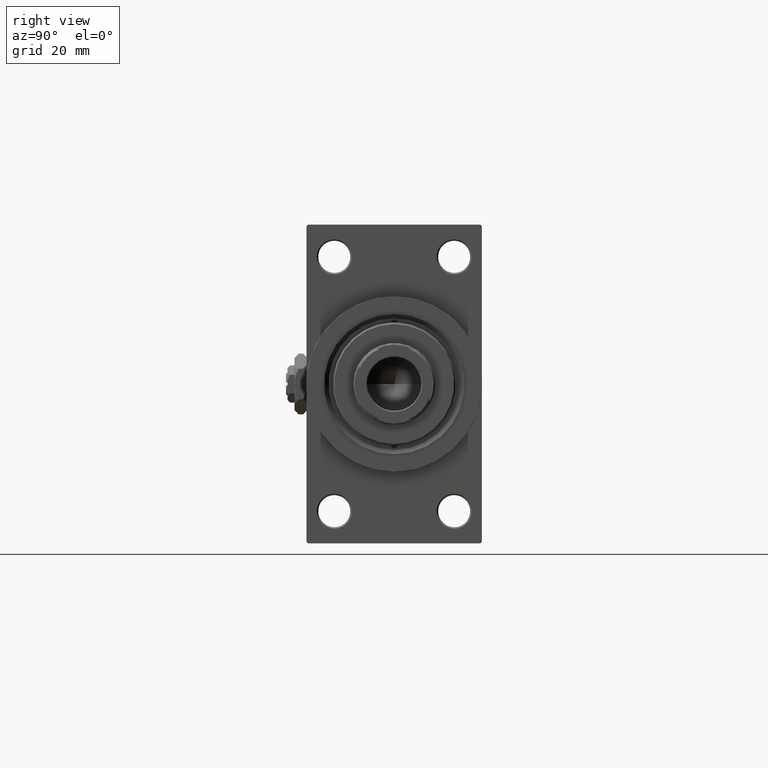
[diagram: clean part render]
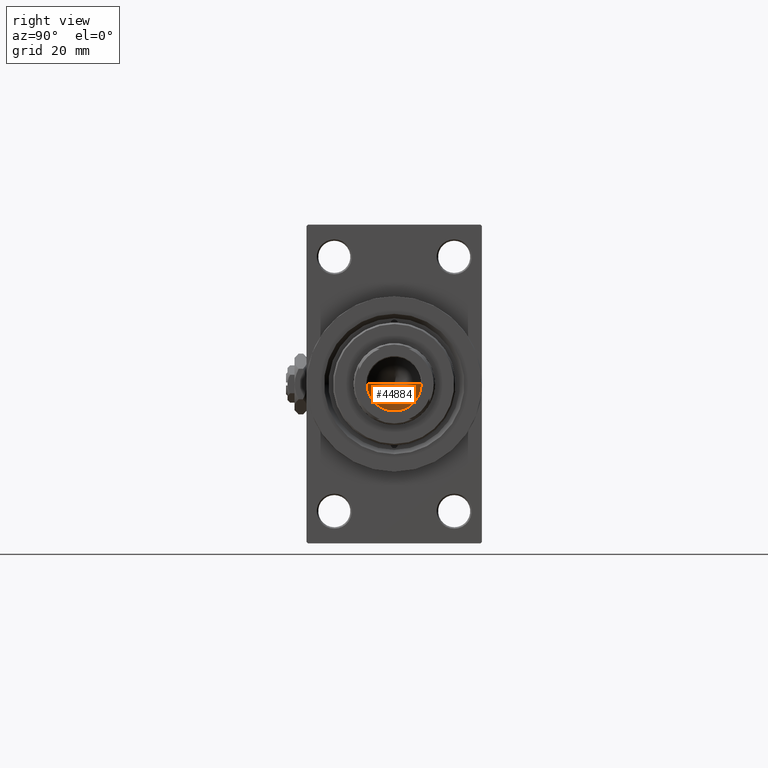
[diagram: same view with one face highlighted and labeled with its STEP entity id]
A machine part, right view. The second image highlights one B-rep face of the part: STEP entity #44884.
In plain terms, the highlighted conical surface has half-angle 59 deg.
Its self-contained STEP definition (entity closure, byte-faithful):
#3369 = CARTESIAN_POINT ( 'NONE',  ( -9.769621978240258809E-15, 0.000000000000000000, 125.4420392739950501 ) ) ;
#3430 = FACE_OUTER_BOUND ( 'NONE', #47341, .T. ) ;
#5102 = CARTESIAN_POINT ( 'NONE',  ( -9.249999999999992895, 1.132798289211300712E-15, 131.0000000000000000 ) ) ;
#6225 = ORIENTED_EDGE ( 'NONE', *, *, #31800, .F. ) ;
#8719 = EDGE_CURVE ( 'NONE', #45432, #19257, #30600, .T. ) ;
#11540 = CARTESIAN_POINT ( 'NONE',  ( 9.249999999999992895, 0.000000000000000000, 131.0000000000000000 ) ) ;
#14122 = VECTOR ( 'NONE', #38989, 1000.000000000000000 ) ;
#17132 = CARTESIAN_POINT ( 'NONE',  ( 9.249999999999992895, 0.000000000000000000, 131.0000000000000000 ) ) ;
#17326 = VECTOR ( 'NONE', #26834, 1000.000000000000000 ) ;
#17753 = ORIENTED_EDGE ( 'NONE', *, *, #8719, .T. ) ;
#19257 = VERTEX_POINT ( 'NONE', #17132 ) ;
#20539 = CARTESIAN_POINT ( 'NONE',  ( -9.249999999999992895, 1.132798289211300712E-15, 131.0000000000000000 ) ) ;
#22261 = VERTEX_POINT ( 'NONE', #20539 ) ;
#22360 = DIRECTION ( 'NONE',  ( 1.000000000000000000, 0.000000000000000000, 0.000000000000000000 ) ) ;
#25960 = EDGE_CURVE ( 'NONE', #19257, #22261, #30838, .T. ) ;
#26288 = ORIENTED_EDGE ( 'NONE', *, *, #25960, .T. ) ;
#26834 = DIRECTION ( 'NONE',  ( 0.8571673007021112234, 0.000000000000000000, 0.5150380749100560429 ) ) ;
#26985 = DIRECTION ( 'NONE',  ( 1.000000000000000000, 0.000000000000000000, 0.000000000000000000 ) ) ;
#30600 = LINE ( 'NONE', #11540, #17326 ) ;
#30838 = CIRCLE ( 'NONE', #37253, 9.249999999999992895 ) ;
#31800 = EDGE_CURVE ( 'NONE', #45432, #22261, #35232, .T. ) ;
#33710 = AXIS2_PLACEMENT_3D ( 'NONE', #34762, #38522, #26985 ) ;
#34762 = CARTESIAN_POINT ( 'NONE',  ( 0.000000000000000000, 0.000000000000000000, 131.0000000000000000 ) ) ;
#35232 = LINE ( 'NONE', #5102, #14122 ) ;
#37253 = AXIS2_PLACEMENT_3D ( 'NONE', #42608, #38840, #22360 ) ;
#38522 = DIRECTION ( 'NONE',  ( -0.000000000000000000, -0.000000000000000000, 1.000000000000000000 ) ) ;
#38840 = DIRECTION ( 'NONE',  ( -0.000000000000000000, -0.000000000000000000, 1.000000000000000000 ) ) ;
#38989 = DIRECTION ( 'NONE',  ( -0.8571673007021112234, 1.049727191138617340E-16, 0.5150380749100560429 ) ) ;
#40906 = CONICAL_SURFACE ( 'NONE', #33710, 9.249999999999992895, 1.029744258676652313 ) ;
#42608 = CARTESIAN_POINT ( 'NONE',  ( 0.000000000000000000, 0.000000000000000000, 131.0000000000000000 ) ) ;
#44884 = ADVANCED_FACE ( 'NONE', ( #3430 ), #40906, .F. ) ;
#45432 = VERTEX_POINT ( 'NONE', #3369 ) ;
#47341 = EDGE_LOOP ( 'NONE', ( #6225, #17753, #26288 ) ) ;